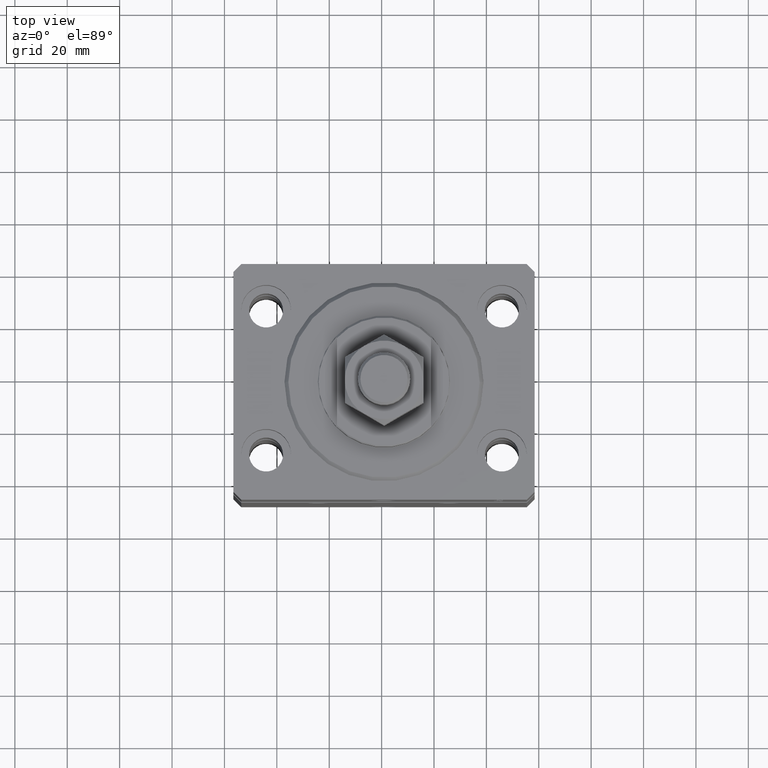
[diagram: clean part render]
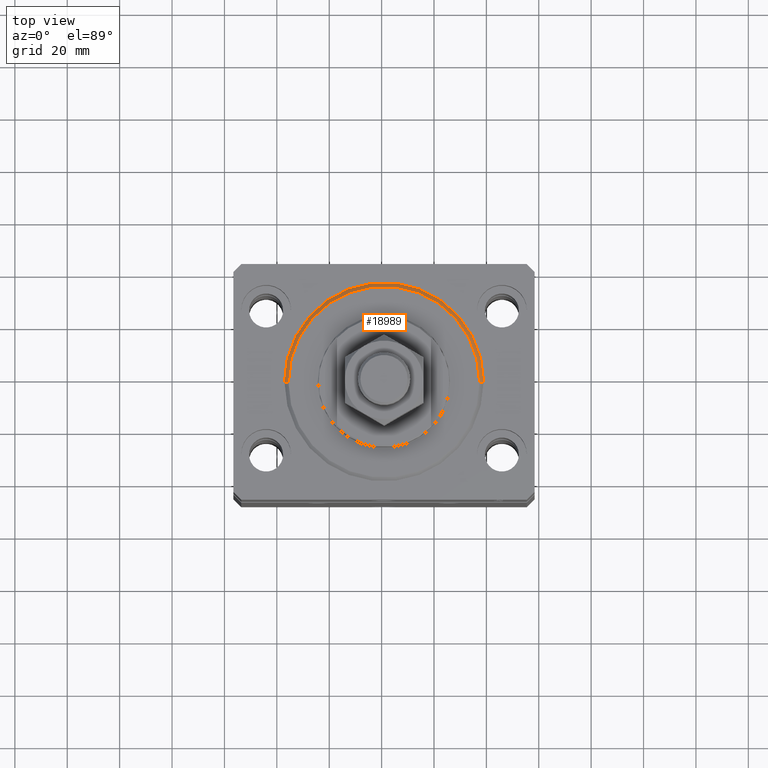
[diagram: same view with one face highlighted and labeled with its STEP entity id]
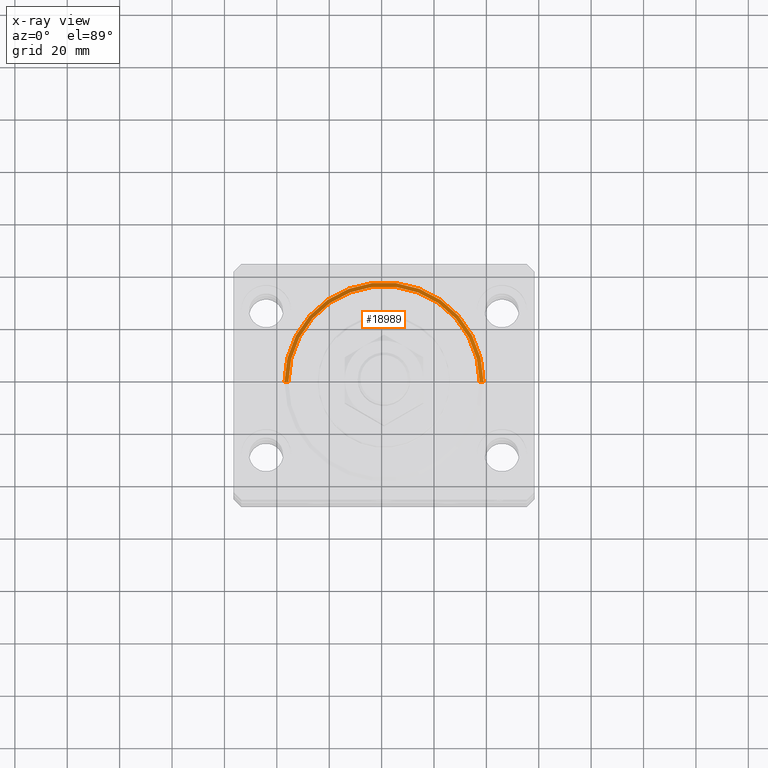
[diagram: x-ray of the same camera — body ghosted, the highlighted face saturated]
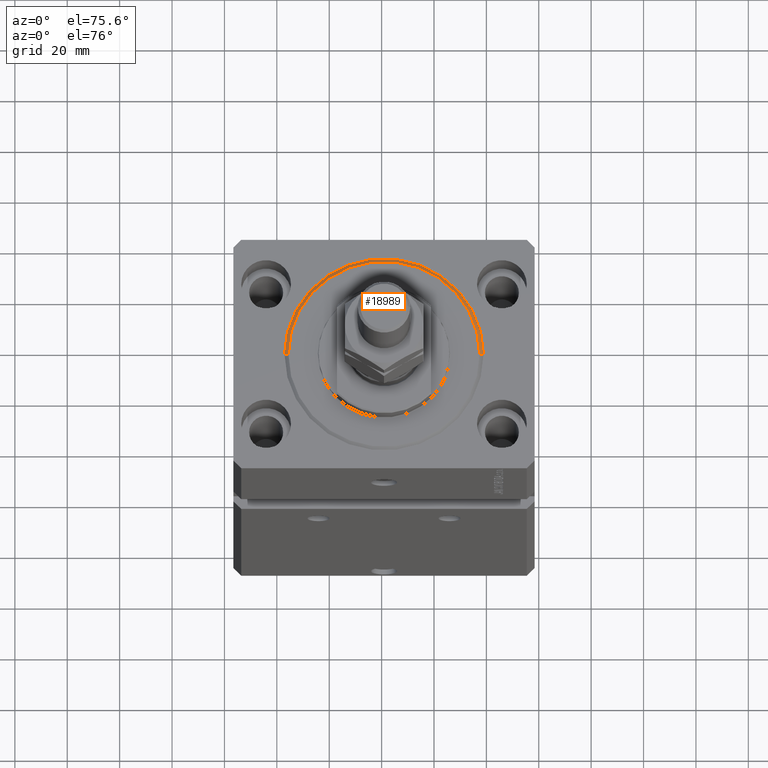
[diagram: same view with one face highlighted and labeled with its STEP entity id]
A machine part, top view. The second image highlights one B-rep face of the part: STEP entity #18989.
The next image is the same camera in x-ray: the body ghosted, the highlighted face saturated — about 0% of this face is hidden behind the body in this view.
A second angle (auxiliary view) of the same face is appended — the face is thin or edge-on in the first view.
In plain terms, the highlighted conical surface has half-angle 45 deg.
Its self-contained STEP definition (entity closure, byte-faithful):
#1724 = DIRECTION ( 'NONE',  ( -0.000000000000000000, -0.000000000000000000, 1.000000000000000000 ) ) ;
#2219 = LINE ( 'NONE', #9758, #29835 ) ;
#3340 = EDGE_CURVE ( 'NONE', #36506, #34365, #2219, .T. ) ;
#4306 = DIRECTION ( 'NONE',  ( 1.000000000000000000, 0.000000000000000000, 0.000000000000000000 ) ) ;
#6092 = ORIENTED_EDGE ( 'NONE', *, *, #3340, .F. ) ;
#7319 = AXIS2_PLACEMENT_3D ( 'NONE', #14040, #28859, #4306 ) ;
#9270 = DIRECTION ( 'NONE',  ( 1.000000000000000000, 0.000000000000000000, 0.000000000000000000 ) ) ;
#9582 = CIRCLE ( 'NONE', #14900, 36.50000000000000000 ) ;
#9758 = CARTESIAN_POINT ( 'NONE',  ( 38.00000000000000000, 0.000000000000000000, 1.499999999999994449 ) ) ;
#11386 = EDGE_CURVE ( 'NONE', #39542, #29390, #32711, .T. ) ;
#12683 = DIRECTION ( 'NONE',  ( 0.7071067811865491270, 0.000000000000000000, 0.7071067811865459074 ) ) ;
#12792 = CARTESIAN_POINT ( 'NONE',  ( 38.00000000000000000, 4.653657836759941941E-15, 1.499999999999994449 ) ) ;
#13641 = EDGE_CURVE ( 'NONE', #39542, #36506, #9582, .T. ) ;
#14040 = CARTESIAN_POINT ( 'NONE',  ( 0.000000000000000000, 0.000000000000000000, 1.499999999999994449 ) ) ;
#14900 = AXIS2_PLACEMENT_3D ( 'NONE', #44156, #18650, #47790 ) ;
#16101 = CARTESIAN_POINT ( 'NONE',  ( 36.50000000000000000, 0.000000000000000000, 0.000000000000000000 ) ) ;
#17664 = VECTOR ( 'NONE', #39270, 1000.000000000000114 ) ;
#18650 = DIRECTION ( 'NONE',  ( -0.000000000000000000, -0.000000000000000000, -1.000000000000000000 ) ) ;
#18989 = ADVANCED_FACE ( 'NONE', ( #32515 ), #42963, .T. ) ;
#20689 = CARTESIAN_POINT ( 'NONE',  ( -36.50000000000000000, 4.561809326823889791E-15, 0.000000000000000000 ) ) ;
#21537 = CARTESIAN_POINT ( 'NONE',  ( -38.00000000000000000, 4.653657836759941941E-15, 1.499999999999994449 ) ) ;
#21570 = EDGE_LOOP ( 'NONE', ( #31777, #37489, #32334, #6092 ) ) ;
#28859 = DIRECTION ( 'NONE',  ( -0.000000000000000000, -0.000000000000000000, 1.000000000000000000 ) ) ;
#29390 = VERTEX_POINT ( 'NONE', #36719 ) ;
#29835 = VECTOR ( 'NONE', #12683, 1000.000000000000114 ) ;
#31777 = ORIENTED_EDGE ( 'NONE', *, *, #13641, .F. ) ;
#32334 = ORIENTED_EDGE ( 'NONE', *, *, #38614, .F. ) ;
#32515 = FACE_OUTER_BOUND ( 'NONE', #21570, .T. ) ;
#32711 = LINE ( 'NONE', #21537, #17664 ) ;
#34365 = VERTEX_POINT ( 'NONE', #12792 ) ;
#36506 = VERTEX_POINT ( 'NONE', #16101 ) ;
#36719 = CARTESIAN_POINT ( 'NONE',  ( -38.00000000000000000, 0.000000000000000000, 1.499999999999994449 ) ) ;
#37272 = AXIS2_PLACEMENT_3D ( 'NONE', #47134, #1724, #9270 ) ;
#37489 = ORIENTED_EDGE ( 'NONE', *, *, #11386, .T. ) ;
#38614 = EDGE_CURVE ( 'NONE', #34365, #29390, #39588, .T. ) ;
#39270 = DIRECTION ( 'NONE',  ( -0.7071067811865491270, 8.659560562354953812E-17, 0.7071067811865459074 ) ) ;
#39542 = VERTEX_POINT ( 'NONE', #20689 ) ;
#39588 = CIRCLE ( 'NONE', #37272, 38.00000000000000000 ) ;
#42963 = CONICAL_SURFACE ( 'NONE', #7319, 38.00000000000000000, 0.7853981633974506105 ) ;
#44156 = CARTESIAN_POINT ( 'NONE',  ( 0.000000000000000000, 0.000000000000000000, 0.000000000000000000 ) ) ;
#47134 = CARTESIAN_POINT ( 'NONE',  ( 0.000000000000000000, 0.000000000000000000, 1.499999999999994449 ) ) ;
#47790 = DIRECTION ( 'NONE',  ( 1.000000000000000000, 0.000000000000000000, 0.000000000000000000 ) ) ;